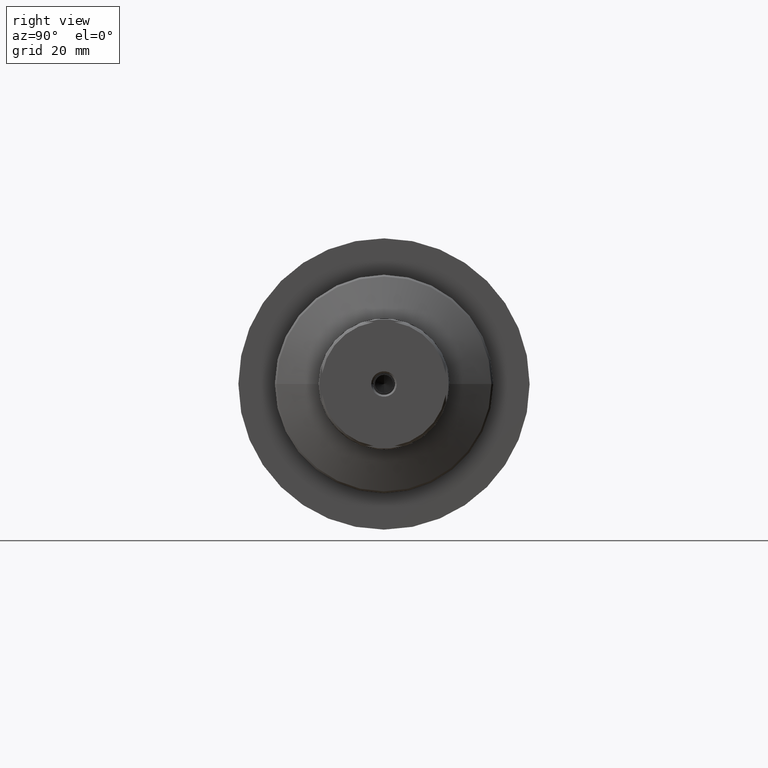
[diagram: clean part render]
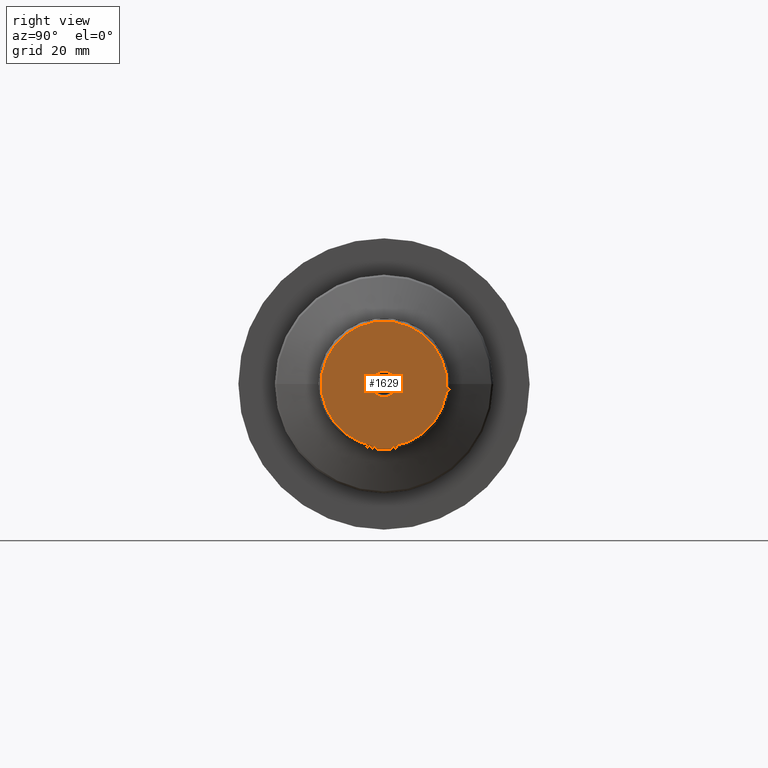
[diagram: same view with one face highlighted and labeled with its STEP entity id]
A machine part, right view. The second image highlights one B-rep face of the part: STEP entity #1629.
In plain terms, the highlighted planar face has unit normal (-1, -0, 0).
Its self-contained STEP definition (entity closure, byte-faithful):
#46 = CARTESIAN_POINT ( 'NONE',  ( 166.0000000000000000, 1.775440254634649393E-15, 0.000000000000000000 ) ) ;
#58 = CARTESIAN_POINT ( 'NONE',  ( 166.0000000000000853, 5.105144464162780338, -17.00000000000000000 ) ) ;
#59 = PLANE ( 'NONE',  #213 ) ;
#61 = CIRCLE ( 'NONE', #1332, 17.24999999999998579 ) ;
#125 = AXIS2_PLACEMENT_3D ( 'NONE', #285, #2245, #824 ) ;
#131 = CARTESIAN_POINT ( 'NONE',  ( 166.0000000000000000, 16.99999999999724665, 2.926174977695906065 ) ) ;
#148 = EDGE_CURVE ( 'NONE', #2298, #633, #2050, .T. ) ;
#183 = CARTESIAN_POINT ( 'NONE',  ( 165.9999999999999147, -5.105144464168279939, 17.00000000000000000 ) ) ;
#200 = EDGE_CURVE ( 'NONE', #1064, #1280, #1894, .T. ) ;
#201 = FACE_OUTER_BOUND ( 'NONE', #867, .T. ) ;
#213 = AXIS2_PLACEMENT_3D ( 'NONE', #405, #1811, #1612 ) ;
#277 = DIRECTION ( 'NONE',  ( 0.000000000000000000, 0.000000000000000000, 1.000000000000000000 ) ) ;
#285 = CARTESIAN_POINT ( 'NONE',  ( 166.0000000000000000, 1.775440254634649393E-15, 0.000000000000000000 ) ) ;
#297 = CARTESIAN_POINT ( 'NONE',  ( 166.0000000000000000, 3.499999999997895905, 0.000000000000000000 ) ) ;
#311 = AXIS2_PLACEMENT_3D ( 'NONE', #1039, #1222, #2151 ) ;
#354 = CARTESIAN_POINT ( 'NONE',  ( 166.0000000000000000, -3.500000000003525624, 4.286263797016684214E-16 ) ) ;
#357 = CARTESIAN_POINT ( 'NONE',  ( 166.0000000000002842, 16.99999999999725020, -2.926174977695644941 ) ) ;
#367 = DIRECTION ( 'NONE',  ( 0.000000000000000000, -1.000000000000000000, 0.000000000000000000 ) ) ;
#372 = DIRECTION ( 'NONE',  ( 0.000000000000000000, -3.397990964119416901E-16, -1.000000000000000000 ) ) ;
#405 = CARTESIAN_POINT ( 'NONE',  ( 166.0000000000000000, -8.673617379884035472E-16, 0.000000000000000000 ) ) ;
#433 = LINE ( 'NONE', #783, #595 ) ;
#457 = EDGE_CURVE ( 'NONE', #1280, #1064, #751, .T. ) ;
#462 = VERTEX_POINT ( 'NONE', #1279 ) ;
#595 = VECTOR ( 'NONE', #277, 1000.000000000000000 ) ;
#622 = DIRECTION ( 'NONE',  ( 0.000000000000000000, -1.000000000000000000, 0.000000000000000000 ) ) ;
#633 = VERTEX_POINT ( 'NONE', #357 ) ;
#639 = ORIENTED_EDGE ( 'NONE', *, *, #1905, .T. ) ;
#649 = CARTESIAN_POINT ( 'NONE',  ( 166.0000000000000568, 2.926174977679903311, 17.00000000000000000 ) ) ;
#663 = AXIS2_PLACEMENT_3D ( 'NONE', #2258, #2082, #622 ) ;
#697 = VERTEX_POINT ( 'NONE', #1190 ) ;
#751 = CIRCLE ( 'NONE', #311, 3.500000000000652811 ) ;
#770 = VERTEX_POINT ( 'NONE', #1645 ) ;
#773 = EDGE_CURVE ( 'NONE', #770, #697, #1304, .T. ) ;
#783 = CARTESIAN_POINT ( 'NONE',  ( 165.9999999999997442, -17.00000000000275335, -5.105144464165531915 ) ) ;
#812 = DIRECTION ( 'NONE',  ( -1.000000000000000000, -1.069542322069065801E-17, -0.000000000000000000 ) ) ;
#819 = EDGE_CURVE ( 'NONE', #770, #633, #2237, .T. ) ;
#824 = DIRECTION ( 'NONE',  ( 0.000000000000000000, -1.000000000000000000, 0.000000000000000000 ) ) ;
#867 = EDGE_LOOP ( 'NONE', ( #2207, #2159, #951, #1628, #1600, #2072, #1296, #639 ) ) ;
#894 = VERTEX_POINT ( 'NONE', #1527 ) ;
#930 = DIRECTION ( 'NONE',  ( 1.000000000000000000, 1.069542322069065801E-17, 0.000000000000000000 ) ) ;
#950 = EDGE_CURVE ( 'NONE', #894, #1184, #1609, .T. ) ;
#951 = ORIENTED_EDGE ( 'NONE', *, *, #148, .F. ) ;
#1009 = CIRCLE ( 'NONE', #1051, 17.25000000000000000 ) ;
#1039 = CARTESIAN_POINT ( 'NONE',  ( 166.0000000000000000, -2.751059567157103127E-12, 0.000000000000000000 ) ) ;
#1040 = VERTEX_POINT ( 'NONE', #1659 ) ;
#1051 = AXIS2_PLACEMENT_3D ( 'NONE', #1699, #1486, #1861 ) ;
#1064 = VERTEX_POINT ( 'NONE', #354 ) ;
#1083 = CIRCLE ( 'NONE', #663, 17.25000000000003908 ) ;
#1169 = ORIENTED_EDGE ( 'NONE', *, *, #457, .T. ) ;
#1184 = VERTEX_POINT ( 'NONE', #649 ) ;
#1190 = CARTESIAN_POINT ( 'NONE',  ( 165.9999999999999432, -2.926174977680131573, -17.00000000000000000 ) ) ;
#1222 = DIRECTION ( 'NONE',  ( -1.000000000000000000, -1.069542322069065801E-17, -0.000000000000000000 ) ) ;
#1279 = CARTESIAN_POINT ( 'NONE',  ( 165.9999999999997442, -17.00000000000275335, 2.926174977663820620 ) ) ;
#1280 = VERTEX_POINT ( 'NONE', #297 ) ;
#1296 = ORIENTED_EDGE ( 'NONE', *, *, #1832, .F. ) ;
#1297 = EDGE_CURVE ( 'NONE', #2298, #1184, #1009, .T. ) ;
#1304 = LINE ( 'NONE', #58, #2154 ) ;
#1326 = VECTOR ( 'NONE', #2168, 1000.000000000000000 ) ;
#1332 = AXIS2_PLACEMENT_3D ( 'NONE', #46, #930, #1977 ) ;
#1486 = DIRECTION ( 'NONE',  ( 1.000000000000000000, 1.069542322069065801E-17, 0.000000000000000000 ) ) ;
#1494 = EDGE_LOOP ( 'NONE', ( #1169, #1622 ) ) ;
#1527 = CARTESIAN_POINT ( 'NONE',  ( 165.9999999999999432, -2.926174977679848244, 16.99999999999999289 ) ) ;
#1586 = CARTESIAN_POINT ( 'NONE',  ( 166.0000000000002842, 16.99999999999725375, 5.105144464165529250 ) ) ;
#1600 = ORIENTED_EDGE ( 'NONE', *, *, #950, .F. ) ;
#1609 = LINE ( 'NONE', #183, #1326 ) ;
#1612 = DIRECTION ( 'NONE',  ( 1.069542322069065801E-17, -1.000000000000000000, 0.000000000000000000 ) ) ;
#1622 = ORIENTED_EDGE ( 'NONE', *, *, #200, .T. ) ;
#1623 = DIRECTION ( 'NONE',  ( -1.631035662777319955E-14, -1.000000000000000000, 0.000000000000000000 ) ) ;
#1628 = ORIENTED_EDGE ( 'NONE', *, *, #1297, .T. ) ;
#1629 = ADVANCED_FACE ( 'NONE', ( #1793, #201 ), #59, .F. ) ;
#1645 = CARTESIAN_POINT ( 'NONE',  ( 166.0000000000000568, 2.926174977679684819, -16.99999999999999289 ) ) ;
#1659 = CARTESIAN_POINT ( 'NONE',  ( 166.0000000000000000, -17.00000000000274625, -2.926174977664149246 ) ) ;
#1695 = CARTESIAN_POINT ( 'NONE',  ( 166.0000000000000000, -2.751059567157103127E-12, 0.000000000000000000 ) ) ;
#1699 = CARTESIAN_POINT ( 'NONE',  ( 166.0000000000000000, 1.775440254634649393E-15, 0.000000000000000000 ) ) ;
#1708 = EDGE_CURVE ( 'NONE', #894, #462, #61, .T. ) ;
#1793 = FACE_BOUND ( 'NONE', #1494, .T. ) ;
#1811 = DIRECTION ( 'NONE',  ( -1.000000000000000000, -1.069542322069065801E-17, 0.000000000000000000 ) ) ;
#1832 = EDGE_CURVE ( 'NONE', #1040, #462, #433, .T. ) ;
#1861 = DIRECTION ( 'NONE',  ( 0.000000000000000000, -1.000000000000000000, 0.000000000000000000 ) ) ;
#1894 = CIRCLE ( 'NONE', #1942, 3.500000000000652811 ) ;
#1905 = EDGE_CURVE ( 'NONE', #1040, #697, #1083, .T. ) ;
#1942 = AXIS2_PLACEMENT_3D ( 'NONE', #1695, #812, #367 ) ;
#1977 = DIRECTION ( 'NONE',  ( 0.000000000000000000, -1.000000000000000000, 3.552713678800500929E-15 ) ) ;
#2028 = VECTOR ( 'NONE', #372, 1000.000000000000000 ) ;
#2050 = LINE ( 'NONE', #1586, #2028 ) ;
#2072 = ORIENTED_EDGE ( 'NONE', *, *, #1708, .T. ) ;
#2082 = DIRECTION ( 'NONE',  ( 1.000000000000000000, 1.069542322069065801E-17, 0.000000000000000000 ) ) ;
#2151 = DIRECTION ( 'NONE',  ( 0.000000000000000000, -1.000000000000000000, 0.000000000000000000 ) ) ;
#2154 = VECTOR ( 'NONE', #1623, 1000.000000000000000 ) ;
#2159 = ORIENTED_EDGE ( 'NONE', *, *, #819, .T. ) ;
#2168 = DIRECTION ( 'NONE',  ( 1.631035662777319955E-14, 1.000000000000000000, 0.000000000000000000 ) ) ;
#2207 = ORIENTED_EDGE ( 'NONE', *, *, #773, .F. ) ;
#2237 = CIRCLE ( 'NONE', #125, 17.24999999999996092 ) ;
#2245 = DIRECTION ( 'NONE',  ( 1.000000000000000000, 1.069542322069065801E-17, 0.000000000000000000 ) ) ;
#2258 = CARTESIAN_POINT ( 'NONE',  ( 166.0000000000000000, 1.775440254634649393E-15, 0.000000000000000000 ) ) ;
#2298 = VERTEX_POINT ( 'NONE', #131 ) ;